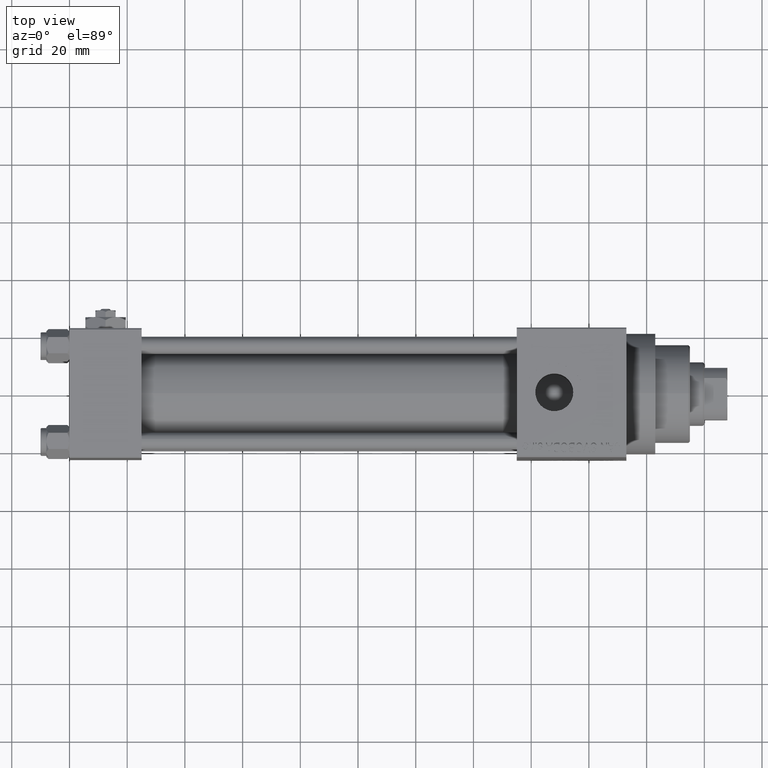
[diagram: clean part render]
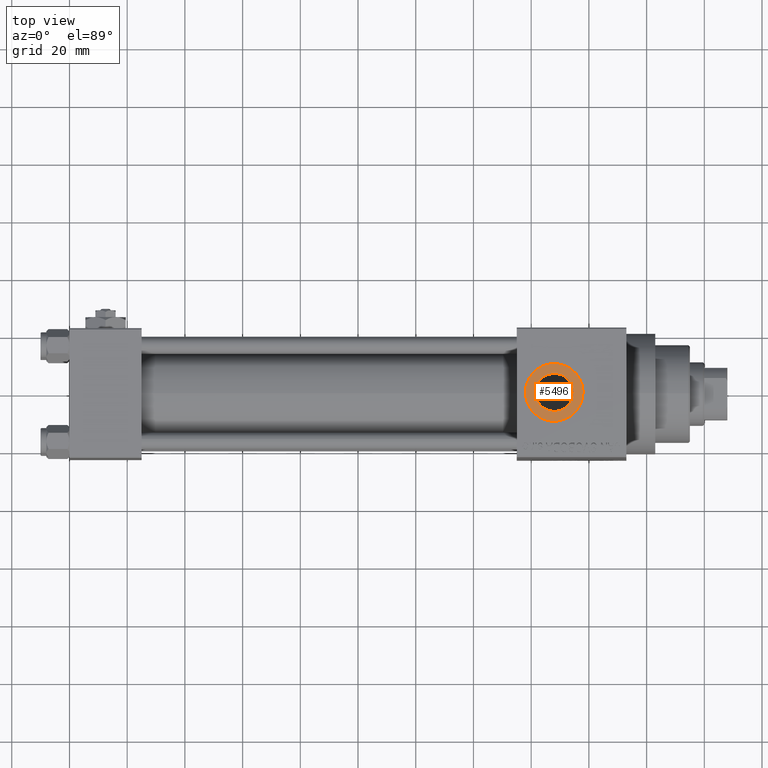
[diagram: same view with one face highlighted and labeled with its STEP entity id]
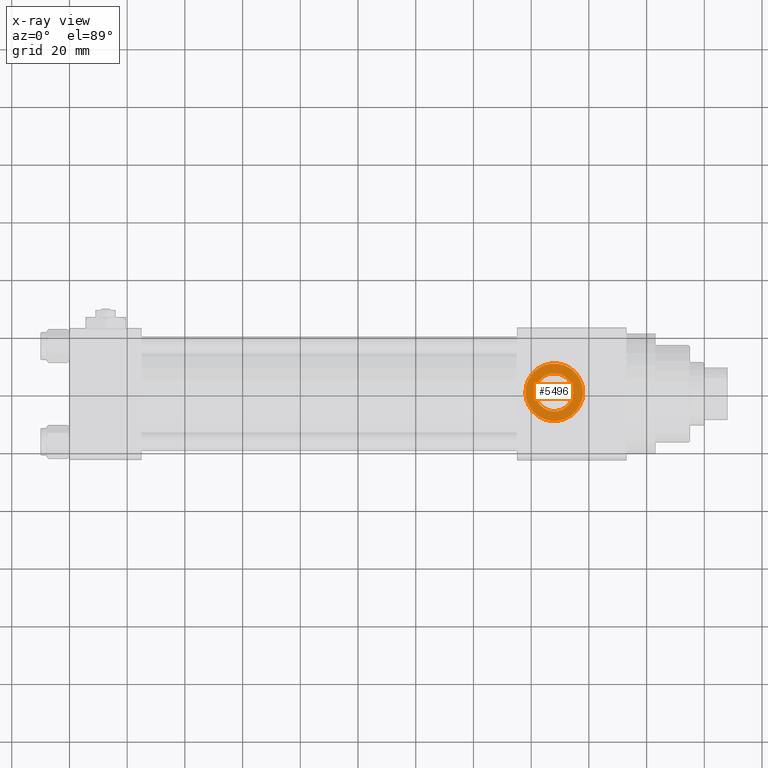
[diagram: x-ray of the same camera — body ghosted, the highlighted face saturated]
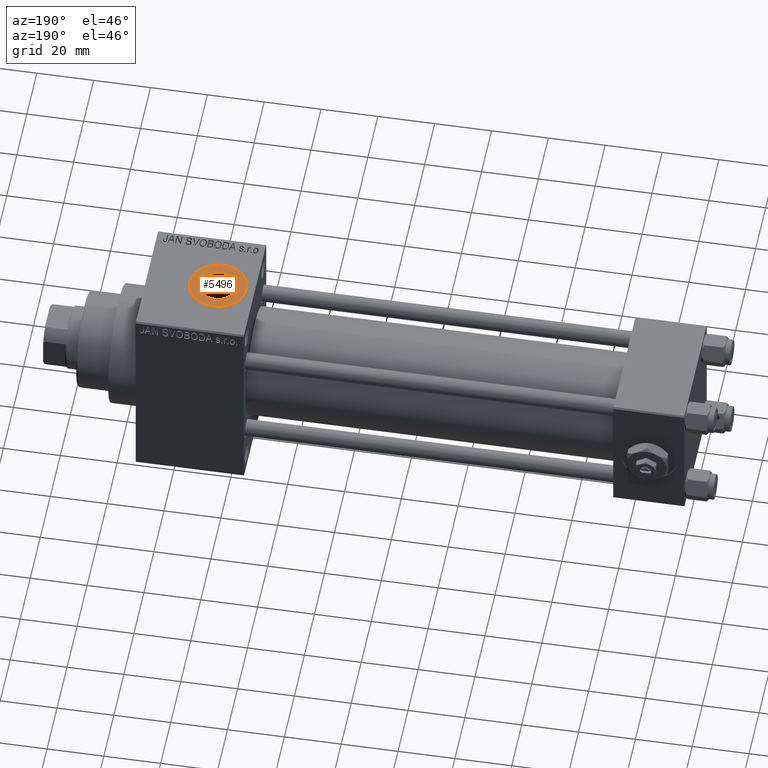
[diagram: same view with one face highlighted and labeled with its STEP entity id]
A machine part, top view. The second image highlights one B-rep face of the part: STEP entity #5496.
The next image is the same camera in x-ray: the body ghosted, the highlighted face saturated — about 0% of this face is hidden behind the body in this view.
A second angle (auxiliary view) of the same face is appended — the face is thin or edge-on in the first view.
In plain terms, the highlighted planar face has unit normal (0, 0, 1).
Its self-contained STEP definition (entity closure, byte-faithful):
#3733 = CARTESIAN_POINT ( 'NONE',  ( 161.4200000000000443, 0.000000000000000000, 34.80000000000000426 ) ) ;
#4328 = VERTEX_POINT ( 'NONE', #48493 ) ;
#5110 = AXIS2_PLACEMENT_3D ( 'NONE', #12935, #43862, #16864 ) ;
#5225 = EDGE_LOOP ( 'NONE', ( #8115, #6602 ) ) ;
#5496 = ADVANCED_FACE ( 'NONE', ( #25212, #40191 ), #20811, .T. ) ;
#6576 = DIRECTION ( 'NONE',  ( 0.000000000000000000, 0.000000000000000000, 1.000000000000000000 ) ) ;
#6602 = ORIENTED_EDGE ( 'NONE', *, *, #31619, .T. ) ;
#8115 = ORIENTED_EDGE ( 'NONE', *, *, #19571, .T. ) ;
#9468 = CARTESIAN_POINT ( 'NONE',  ( 174.5800000000000409, 8.058175938389620001E-16, 34.80000000000000426 ) ) ;
#9687 = DIRECTION ( 'NONE',  ( -0.000000000000000000, -0.000000000000000000, -1.000000000000000000 ) ) ;
#12935 = CARTESIAN_POINT ( 'NONE',  ( 168.0000000000000284, 0.000000000000000000, 34.80000000000000426 ) ) ;
#16864 = DIRECTION ( 'NONE',  ( 1.000000000000000000, 0.000000000000000000, 0.000000000000000000 ) ) ;
#18089 = CIRCLE ( 'NONE', #38417, 10.00000000000000888 ) ;
#18249 = EDGE_CURVE ( 'NONE', #29452, #4328, #18089, .T. ) ;
#19571 = EDGE_CURVE ( 'NONE', #39894, #35215, #46347, .T. ) ;
#20811 = PLANE ( 'NONE',  #42229 ) ;
#23120 = ORIENTED_EDGE ( 'NONE', *, *, #29048, .T. ) ;
#23715 = DIRECTION ( 'NONE',  ( 0.000000000000000000, 0.000000000000000000, 1.000000000000000000 ) ) ;
#24004 = DIRECTION ( 'NONE',  ( -0.000000000000000000, -0.000000000000000000, -1.000000000000000000 ) ) ;
#24427 = ORIENTED_EDGE ( 'NONE', *, *, #18249, .T. ) ;
#25212 = FACE_BOUND ( 'NONE', #5225, .T. ) ;
#27844 = CARTESIAN_POINT ( 'NONE',  ( 168.0000000000000284, 0.000000000000000000, 34.80000000000000426 ) ) ;
#28866 = EDGE_LOOP ( 'NONE', ( #24427, #23120 ) ) ;
#28889 = CARTESIAN_POINT ( 'NONE',  ( 168.0000000000000284, 0.000000000000000000, 34.80000000000000426 ) ) ;
#29048 = EDGE_CURVE ( 'NONE', #4328, #29452, #31719, .T. ) ;
#29452 = VERTEX_POINT ( 'NONE', #35669 ) ;
#31619 = EDGE_CURVE ( 'NONE', #35215, #39894, #37971, .T. ) ;
#31719 = CIRCLE ( 'NONE', #5110, 10.00000000000000888 ) ;
#35215 = VERTEX_POINT ( 'NONE', #9468 ) ;
#35669 = CARTESIAN_POINT ( 'NONE',  ( 178.0000000000000568, 0.000000000000000000, 34.80000000000000426 ) ) ;
#37971 = CIRCLE ( 'NONE', #45859, 6.580000000000002736 ) ;
#38417 = AXIS2_PLACEMENT_3D ( 'NONE', #42619, #23715, #39157 ) ;
#38657 = DIRECTION ( 'NONE',  ( 1.000000000000000000, 0.000000000000000000, 0.000000000000000000 ) ) ;
#38963 = DIRECTION ( 'NONE',  ( 1.000000000000000000, 0.000000000000000000, 0.000000000000000000 ) ) ;
#39157 = DIRECTION ( 'NONE',  ( 1.000000000000000000, 0.000000000000000000, 0.000000000000000000 ) ) ;
#39217 = DIRECTION ( 'NONE',  ( 1.000000000000000000, 0.000000000000000000, -0.000000000000000000 ) ) ;
#39894 = VERTEX_POINT ( 'NONE', #3733 ) ;
#40191 = FACE_OUTER_BOUND ( 'NONE', #28866, .T. ) ;
#42229 = AXIS2_PLACEMENT_3D ( 'NONE', #28889, #6576, #39217 ) ;
#42413 = AXIS2_PLACEMENT_3D ( 'NONE', #47318, #24004, #38963 ) ;
#42619 = CARTESIAN_POINT ( 'NONE',  ( 168.0000000000000284, 0.000000000000000000, 34.80000000000000426 ) ) ;
#43862 = DIRECTION ( 'NONE',  ( 0.000000000000000000, 0.000000000000000000, 1.000000000000000000 ) ) ;
#45859 = AXIS2_PLACEMENT_3D ( 'NONE', #27844, #9687, #38657 ) ;
#46347 = CIRCLE ( 'NONE', #42413, 6.580000000000002736 ) ;
#47318 = CARTESIAN_POINT ( 'NONE',  ( 168.0000000000000284, 0.000000000000000000, 34.80000000000000426 ) ) ;
#48493 = CARTESIAN_POINT ( 'NONE',  ( 158.0000000000000284, 1.224646799147354440E-15, 34.80000000000000426 ) ) ;